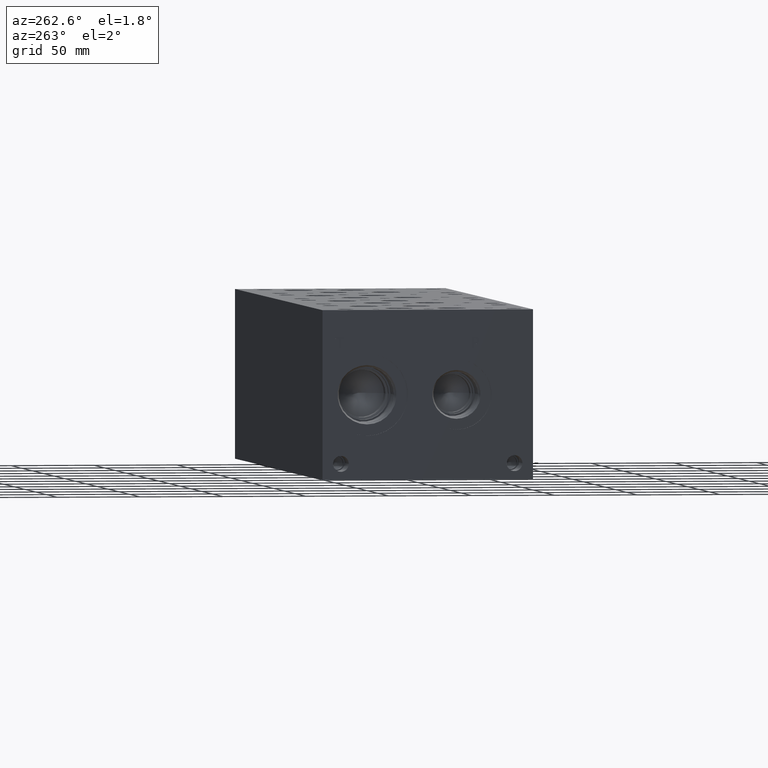
[diagram: clean part render]
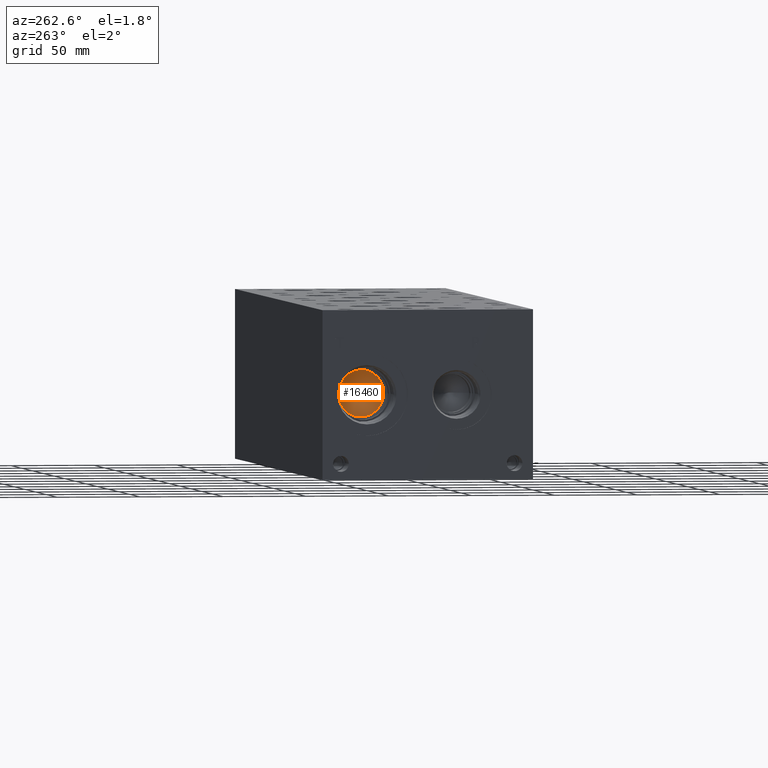
[diagram: same view with one face highlighted and labeled with its STEP entity id]
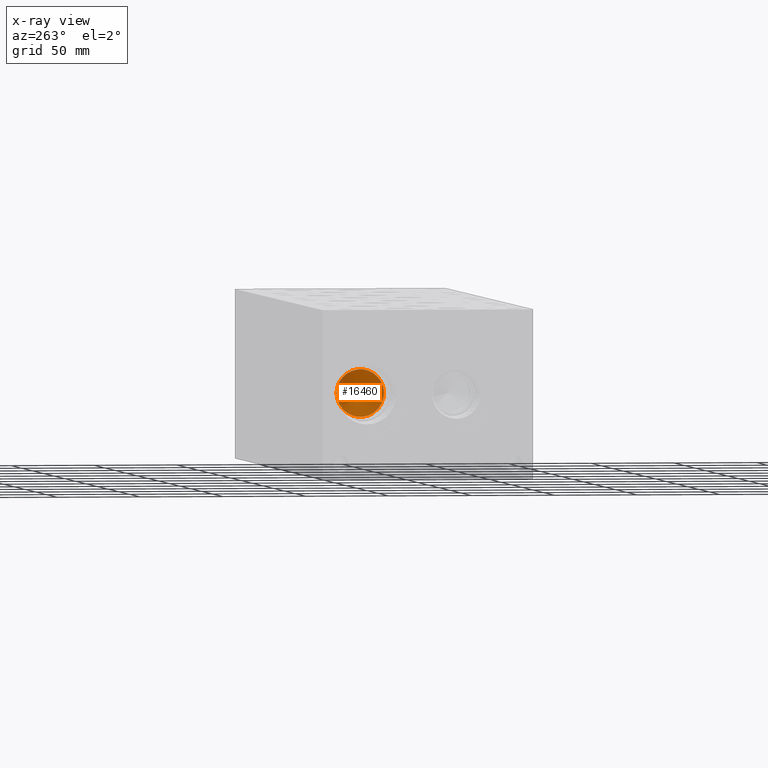
[diagram: x-ray of the same camera — body ghosted, the highlighted face saturated]
A machine part, auxiliary view. The second image highlights one B-rep face of the part: STEP entity #16460.
The next image is the same camera in x-ray: the body ghosted, the highlighted face saturated — about 0% of this face is hidden behind the body in this view.
In plain terms, the highlighted conical surface has half-angle 60 deg.
Its self-contained STEP definition (entity closure, byte-faithful):
#181=CONICAL_SURFACE('',#17282,7.14375,1.0471975511966);
#366=CIRCLE('',#17283,14.2875);
#367=CIRCLE('',#17284,14.2875);
#2072=FACE_OUTER_BOUND('',#3028,.T.);
#3028=EDGE_LOOP('',(#13373,#13374,#13375,#13376));
#4626=LINE('',#27311,#6068);
#6068=VECTOR('',#20300,7.14375);
#7381=VERTEX_POINT('',#27307);
#7382=VERTEX_POINT('',#27308);
#7383=VERTEX_POINT('',#27310);
#9524=EDGE_CURVE('',#7381,#7382,#366,.T.);
#9525=EDGE_CURVE('',#7382,#7383,#4626,.T.);
#9526=EDGE_CURVE('',#7382,#7381,#367,.T.);
#13373=ORIENTED_EDGE('',*,*,#9524,.T.);
#13374=ORIENTED_EDGE('',*,*,#9525,.T.);
#13375=ORIENTED_EDGE('',*,*,#9525,.F.);
#13376=ORIENTED_EDGE('',*,*,#9526,.T.);
#16460=ADVANCED_FACE('',(#2072),#181,.F.);
#17282=AXIS2_PLACEMENT_3D('',#27306,#20296,#20297);
#17283=AXIS2_PLACEMENT_3D('',#27309,#20298,#20299);
#17284=AXIS2_PLACEMENT_3D('',#27312,#20301,#20302);
#20296=DIRECTION('center_axis',(-1.,0.,0.));
#20297=DIRECTION('ref_axis',(0.,1.,0.));
#20298=DIRECTION('center_axis',(-1.,0.,0.));
#20299=DIRECTION('ref_axis',(0.,1.,0.));
#20300=DIRECTION('',(0.5,0.866025403784438,-1.06057523872491E-16));
#20301=DIRECTION('center_axis',(-1.,0.,0.));
#20302=DIRECTION('ref_axis',(0.,1.,0.));
#27306=CARTESIAN_POINT('Origin',(36.7725059855234,100.0252,50.8));
#27307=CARTESIAN_POINT('',(32.64806,114.3127,50.8));
#27308=CARTESIAN_POINT('',(32.64806,85.7377,50.8));
#27309=CARTESIAN_POINT('Origin',(32.64806,100.0252,50.8));
#27310=CARTESIAN_POINT('',(40.8969519710468,100.0252,50.8));
#27311=CARTESIAN_POINT('',(36.7725059855234,92.88145,50.8));
#27312=CARTESIAN_POINT('Origin',(32.64806,100.0252,50.8));